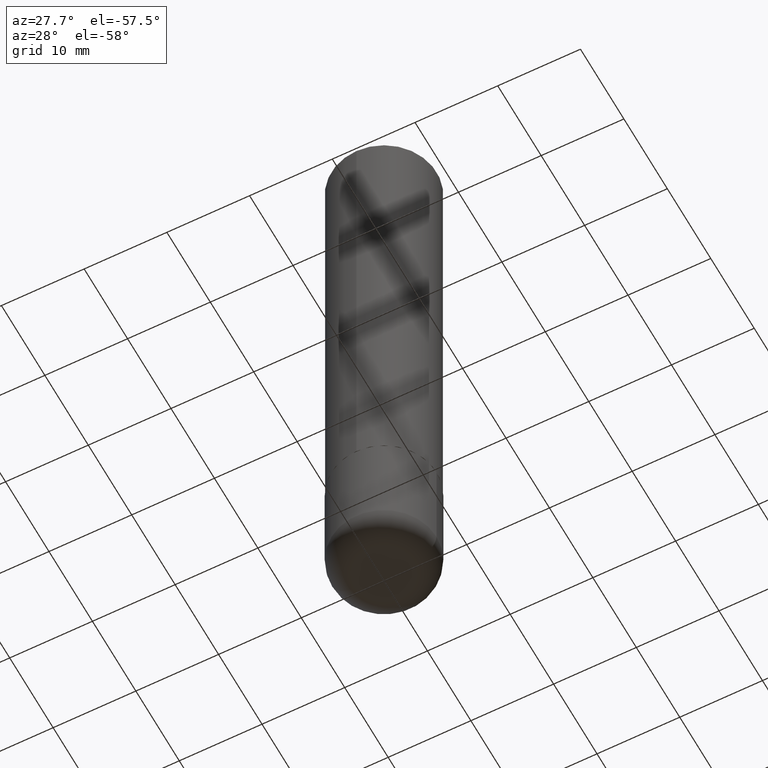
[diagram: clean part render]
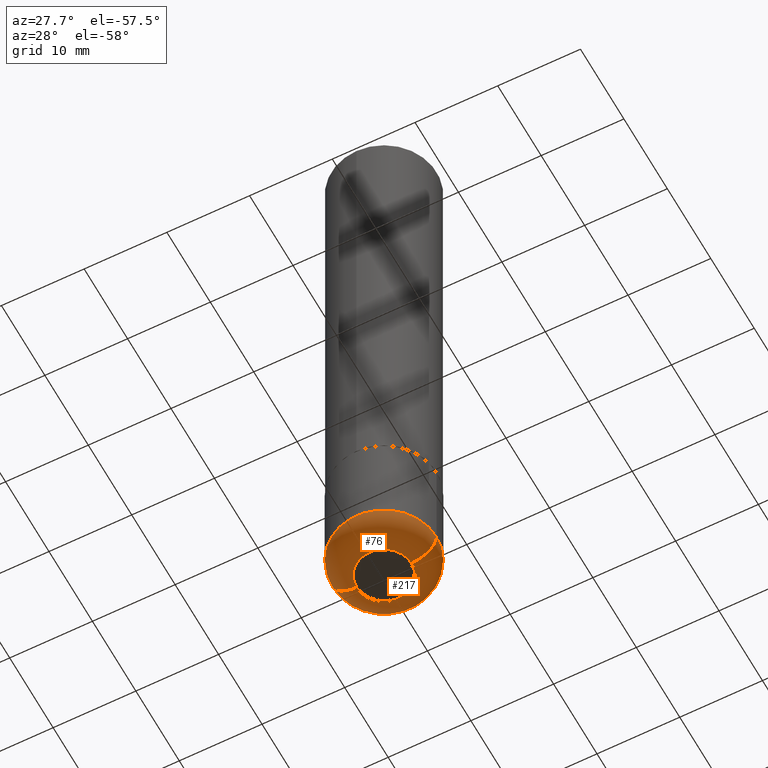
[diagram: same view with one multi-face feature highlighted, each face labeled with its STEP entity id]
A machine part, auxiliary view. The highlighted faces form ONE feature: a constant-radius fillet chain: 2 tangent blend faces with common blend radius 3.048 mm. The faces share edges in the B-rep.
Their STEP definitions:
[1] entity #217 (Torus):
#16 = ORIENTED_EDGE ( 'NONE', *, *, #309, .F. ) ;
#19 = EDGE_CURVE ( 'NONE', #66, #345, #306, .T. ) ;
#21 = VERTEX_POINT ( 'NONE', #126 ) ;
#38 = EDGE_CURVE ( 'NONE', #21, #345, #273, .T. ) ;
#47 = EDGE_LOOP ( 'NONE', ( #297, #223, #307, #16 ) ) ;
#66 = VERTEX_POINT ( 'NONE', #333 ) ;
#68 = CARTESIAN_POINT ( 'NONE',  ( 0.1300000000000000044, -1.138222916462865292E-14, -3.000000000000000444 ) ) ;
#71 = FACE_OUTER_BOUND ( 'NONE', #47, .T. ) ;
#72 = AXIS2_PLACEMENT_3D ( 'NONE', #280, #215, #216 ) ;
#83 = AXIS2_PLACEMENT_3D ( 'NONE', #225, #219, #413 ) ;
#95 = CIRCLE ( 'NONE', #336, 0.1300000000000000044 ) ;
#122 = CARTESIAN_POINT ( 'NONE',  ( 7.042950161813194609E-29, -1.005546625586826130E-14, -2.880000000000000338 ) ) ;
#126 = CARTESIAN_POINT ( 'NONE',  ( 0.2499999999999999722, -1.180120692528982640E-14, -2.880000000000000338 ) ) ;
#138 = DIRECTION ( 'NONE',  ( -2.445468806185136597E-29, 3.491481338843145583E-15, 1.000000000000000000 ) ) ;
#139 = VERTEX_POINT ( 'NONE', #68 ) ;
#142 = EDGE_CURVE ( 'NONE', #139, #66, #95, .T. ) ;
#183 = AXIS2_PLACEMENT_3D ( 'NONE', #122, #381, #221 ) ;
#200 = DIRECTION ( 'NONE',  ( 1.000000000000000000, -6.982962677686273810E-15, 0.000000000000000000 ) ) ;
#202 = CARTESIAN_POINT ( 'NONE',  ( 7.336406418555409790E-29, -1.047444401652943635E-14, -3.000000000000000444 ) ) ;
#215 = DIRECTION ( 'NONE',  ( 7.105427357601001859E-15, 1.000000000000000000, -3.491481338843145583E-15 ) ) ;
#216 = DIRECTION ( 'NONE',  ( -1.000000000000000000, 7.105427357601003436E-15, 0.000000000000000000 ) ) ;
#217 = ADVANCED_FACE ( 'NONE', ( #71 ), #355, .T. ) ;
#219 = DIRECTION ( 'NONE',  ( -6.982962677686266711E-15, -1.000000000000000000, 3.491481338843145583E-15 ) ) ;
#221 = DIRECTION ( 'NONE',  ( 1.000000000000000000, -6.982962677686262766E-15, 0.000000000000000000 ) ) ;
#223 = ORIENTED_EDGE ( 'NONE', *, *, #19, .T. ) ;
#225 = CARTESIAN_POINT ( 'NONE',  ( 0.1300000000000000044, -1.096325140396747629E-14, -2.880000000000000338 ) ) ;
#248 = CARTESIAN_POINT ( 'NONE',  ( 7.042950161813194609E-29, -1.005546625586826130E-14, -2.880000000000000338 ) ) ;
#257 = AXIS2_PLACEMENT_3D ( 'NONE', #248, #278, #383 ) ;
#265 = CIRCLE ( 'NONE', #83, 0.1199999999999999262 ) ;
#273 = CIRCLE ( 'NONE', #183, 0.2500000000000000000 ) ;
#278 = DIRECTION ( 'NONE',  ( -2.445468806185136597E-29, 3.491481338843145583E-15, 1.000000000000000000 ) ) ;
#280 = CARTESIAN_POINT ( 'NONE',  ( -0.1300000000000000044, -9.131760699380130235E-15, -2.880000000000000338 ) ) ;
#297 = ORIENTED_EDGE ( 'NONE', *, *, #142, .T. ) ;
#306 = CIRCLE ( 'NONE', #72, 0.1199999999999999262 ) ;
#307 = ORIENTED_EDGE ( 'NONE', *, *, #38, .F. ) ;
#309 = EDGE_CURVE ( 'NONE', #139, #21, #265, .T. ) ;
#314 = CARTESIAN_POINT ( 'NONE',  ( -0.2499999999999999722, -8.279109416468010833E-15, -2.880000000000000338 ) ) ;
#333 = CARTESIAN_POINT ( 'NONE',  ( -0.1300000000000000044, -8.914923938254659640E-15, -3.000000000000000444 ) ) ;
#336 = AXIS2_PLACEMENT_3D ( 'NONE', #202, #138, #200 ) ;
#345 = VERTEX_POINT ( 'NONE', #314 ) ;
#355 = TOROIDAL_SURFACE ( 'NONE', #257, 0.1300000000000000044, 0.1199999999999999123 ) ;
#381 = DIRECTION ( 'NONE',  ( -2.445468806185136597E-29, 3.491481338843145583E-15, 1.000000000000000000 ) ) ;
#383 = DIRECTION ( 'NONE',  ( 1.000000000000000000, -6.982962677686265133E-15, 4.883557194083112340E-29 ) ) ;
#413 = DIRECTION ( 'NONE',  ( 1.000000000000000000, -6.982962677686272233E-15, 0.000000000000000000 ) ) ;
[2] entity #76 (Torus):
#19 = EDGE_CURVE ( 'NONE', #66, #345, #306, .T. ) ;
#21 = VERTEX_POINT ( 'NONE', #126 ) ;
#32 = DIRECTION ( 'NONE',  ( 1.000000000000000000, -6.982962677686273810E-15, 0.000000000000000000 ) ) ;
#41 = DIRECTION ( 'NONE',  ( -2.445468806185136597E-29, 3.491481338843145583E-15, 1.000000000000000000 ) ) ;
#66 = VERTEX_POINT ( 'NONE', #333 ) ;
#68 = CARTESIAN_POINT ( 'NONE',  ( 0.1300000000000000044, -1.138222916462865292E-14, -3.000000000000000444 ) ) ;
#72 = AXIS2_PLACEMENT_3D ( 'NONE', #280, #215, #216 ) ;
#76 = ADVANCED_FACE ( 'NONE', ( #397 ), #85, .T. ) ;
#83 = AXIS2_PLACEMENT_3D ( 'NONE', #225, #219, #413 ) ;
#85 = TOROIDAL_SURFACE ( 'NONE', #321, 0.1300000000000000044, 0.1199999999999999123 ) ;
#90 = CARTESIAN_POINT ( 'NONE',  ( 7.336406418555409790E-29, -1.047444401652943635E-14, -3.000000000000000444 ) ) ;
#98 = EDGE_LOOP ( 'NONE', ( #149, #186, #174, #128 ) ) ;
#126 = CARTESIAN_POINT ( 'NONE',  ( 0.2499999999999999722, -1.180120692528982640E-14, -2.880000000000000338 ) ) ;
#128 = ORIENTED_EDGE ( 'NONE', *, *, #316, .F. ) ;
#133 = AXIS2_PLACEMENT_3D ( 'NONE', #90, #286, #32 ) ;
#139 = VERTEX_POINT ( 'NONE', #68 ) ;
#140 = AXIS2_PLACEMENT_3D ( 'NONE', #350, #252, #313 ) ;
#149 = ORIENTED_EDGE ( 'NONE', *, *, #19, .F. ) ;
#155 = CIRCLE ( 'NONE', #133, 0.1300000000000000044 ) ;
#174 = ORIENTED_EDGE ( 'NONE', *, *, #309, .T. ) ;
#186 = ORIENTED_EDGE ( 'NONE', *, *, #358, .T. ) ;
#215 = DIRECTION ( 'NONE',  ( 7.105427357601001859E-15, 1.000000000000000000, -3.491481338843145583E-15 ) ) ;
#216 = DIRECTION ( 'NONE',  ( -1.000000000000000000, 7.105427357601003436E-15, 0.000000000000000000 ) ) ;
#219 = DIRECTION ( 'NONE',  ( -6.982962677686266711E-15, -1.000000000000000000, 3.491481338843145583E-15 ) ) ;
#225 = CARTESIAN_POINT ( 'NONE',  ( 0.1300000000000000044, -1.096325140396747629E-14, -2.880000000000000338 ) ) ;
#252 = DIRECTION ( 'NONE',  ( -2.445468806185136597E-29, 3.491481338843145583E-15, 1.000000000000000000 ) ) ;
#262 = DIRECTION ( 'NONE',  ( 1.000000000000000000, -6.982962677686265133E-15, 4.883557194083112340E-29 ) ) ;
#265 = CIRCLE ( 'NONE', #83, 0.1199999999999999262 ) ;
#269 = CARTESIAN_POINT ( 'NONE',  ( 7.042950161813194609E-29, -1.005546625586826130E-14, -2.880000000000000338 ) ) ;
#280 = CARTESIAN_POINT ( 'NONE',  ( -0.1300000000000000044, -9.131760699380130235E-15, -2.880000000000000338 ) ) ;
#286 = DIRECTION ( 'NONE',  ( -2.445468806185136597E-29, 3.491481338843145583E-15, 1.000000000000000000 ) ) ;
#306 = CIRCLE ( 'NONE', #72, 0.1199999999999999262 ) ;
#309 = EDGE_CURVE ( 'NONE', #139, #21, #265, .T. ) ;
#313 = DIRECTION ( 'NONE',  ( 1.000000000000000000, -6.982962677686262766E-15, 0.000000000000000000 ) ) ;
#314 = CARTESIAN_POINT ( 'NONE',  ( -0.2499999999999999722, -8.279109416468010833E-15, -2.880000000000000338 ) ) ;
#316 = EDGE_CURVE ( 'NONE', #345, #21, #318, .T. ) ;
#318 = CIRCLE ( 'NONE', #140, 0.2500000000000000000 ) ;
#321 = AXIS2_PLACEMENT_3D ( 'NONE', #269, #41, #262 ) ;
#333 = CARTESIAN_POINT ( 'NONE',  ( -0.1300000000000000044, -8.914923938254659640E-15, -3.000000000000000444 ) ) ;
#345 = VERTEX_POINT ( 'NONE', #314 ) ;
#350 = CARTESIAN_POINT ( 'NONE',  ( 7.042950161813194609E-29, -1.005546625586826130E-14, -2.880000000000000338 ) ) ;
#358 = EDGE_CURVE ( 'NONE', #66, #139, #155, .T. ) ;
#397 = FACE_OUTER_BOUND ( 'NONE', #98, .T. ) ;
#413 = DIRECTION ( 'NONE',  ( 1.000000000000000000, -6.982962677686272233E-15, 0.000000000000000000 ) ) ;